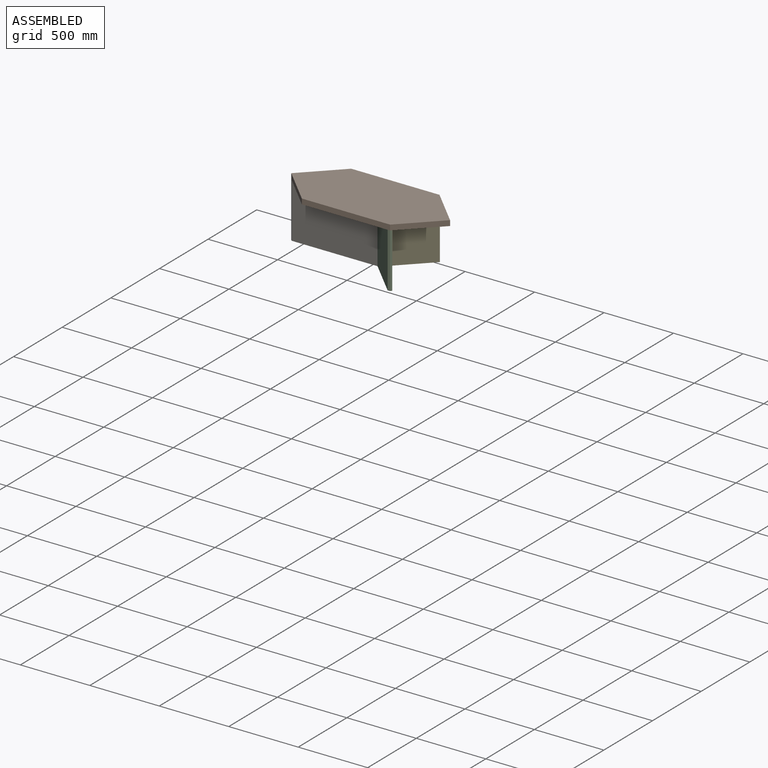
[diagram: assembled view]
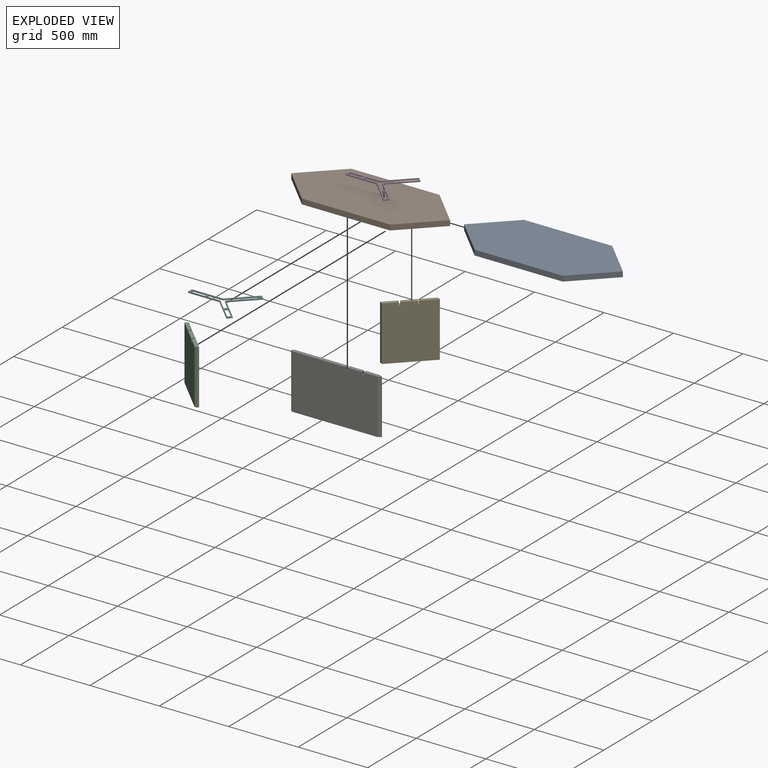
[diagram: exploded view]
GUIDED TOUR — MATED ASSEMBLY (Onshape document 5872a078319eed9a7cf71b3f, AutoMate assembly 5872a078319eed9a7cf71b3f_d46c2067f6a06b2119b77b0b_a4a58686169b9569efb50c80_default)

This assembly has 7 components, labeled P0..P6 below (a component is one placed occurrence of a part; the same part can appear more than once), held together by 5 mates. A mate is a constraint between two components; its type names the relative motion it leaves free:
  FASTENED — locks the two components together rigidly (no relative motion).
Axis/direction vectors are unit vectors and 'through' points are millimeter coordinates, both in the assembly's world frame.

MATES
  1. FASTENED "Fastened 5": P5 <-> P3, direction (0.000, 1.000, 0.000) through (197.70, 308.87, 87.40) mm
  2. FASTENED "Fastened 2": P2 <-> P1, direction (0.000, -1.000, 0.000) through (685.56, 35.82, 96.92) mm
  3. FASTENED "Fastened 4": P3 <-> P6, direction (1.000, 0.000, 0.000) through (210.40, 302.52, 77.87) mm
  4. FASTENED "Fastened 3": P6 <-> P1, direction (-0.707, 0.707, 0.000) through (-203.44, 289.82, 96.92) mm
  5. FASTENED "Fastened 1": P4 <-> P1, direction (0.707, 0.707, 0.000) through (685.56, 543.82, 96.92) mm

ASSEMBLY ORDER
  1. P1 — the base component [order heuristic]
  2. P0 — core [order heuristic]
  3. P6 [order verified]
  4. P4 [order verified]
  5. P3 [order verified]
  6. P5 [order verified]
  7. P2 [order verified]
(P3, P5 verified with a relaxed clearance tolerance: the source model stores slight part interference there.)
Order-tag legend:
  [order verified] — this step's position reverses a verified removal order: the component was checked to insert without passing through the ones already placed.
  [order heuristic] — the first 2 components form the assembly's core: parts whose collision-free extraction could not be verified, listed in mate-graph order.

Of the 7 components, 7 carry the full construction recipe — the FeatureScript program that regenerates the part's solid from scratch; the rest are supplied as boundary geometry only.
Each toured component is shown spotlighted twice — in the assembled view, then in the exploded view, where a leader line traces a displaced component back to its assembled socket (saturated green if recipe-attached, orange if geometry-only; every other component desaturated gray) — followed by its recipe or geometry summary and the mates that hold it.
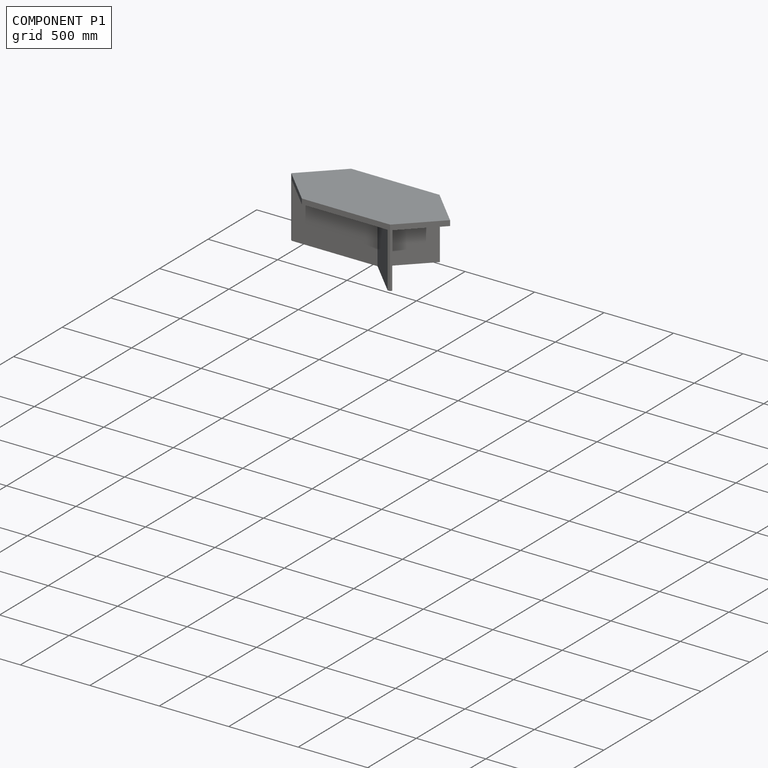
[diagram: component P1 — assembled]
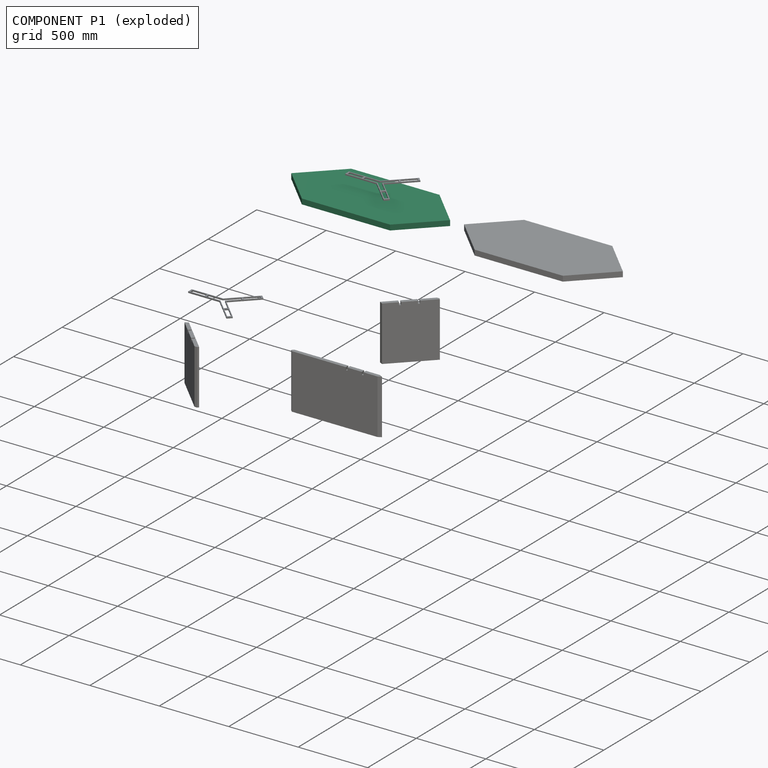
[diagram: component P1 — exploded]
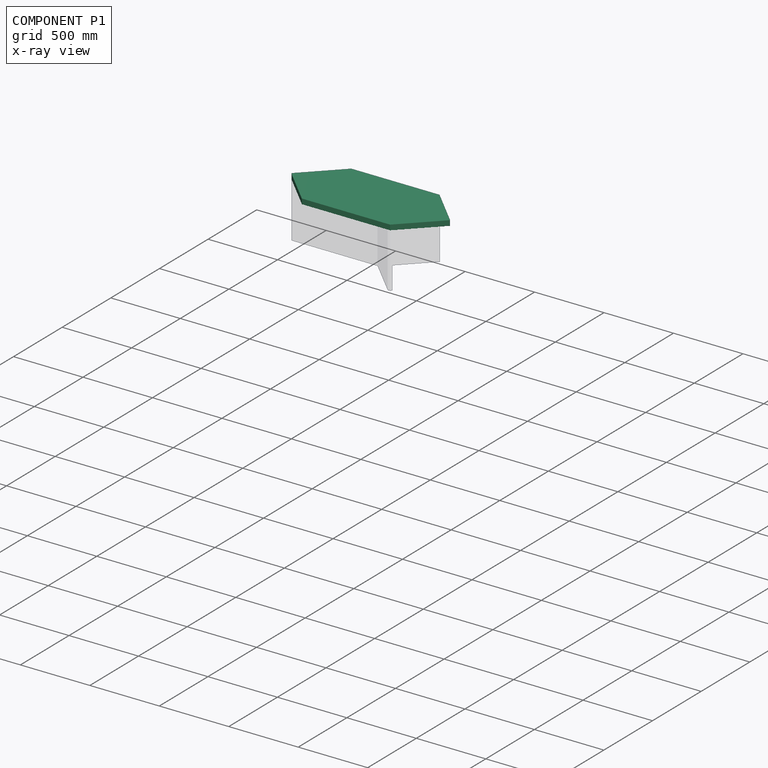
[diagram: component P1 — x-ray view]
COMPONENT P1 — same part as P0 (CADFS 00780366); its construction recipe is shown at P0.
Held by: FASTENED mate "Fastened 2" to P2; FASTENED mate "Fastened 3" to P6; FASTENED mate "Fastened 1" to P4.
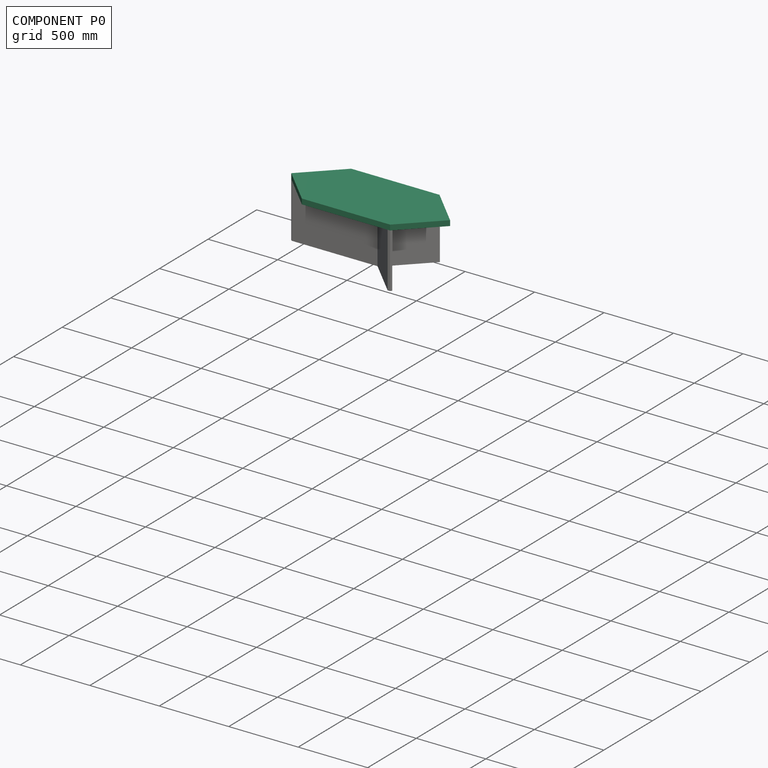
[diagram: component P0 — assembled]
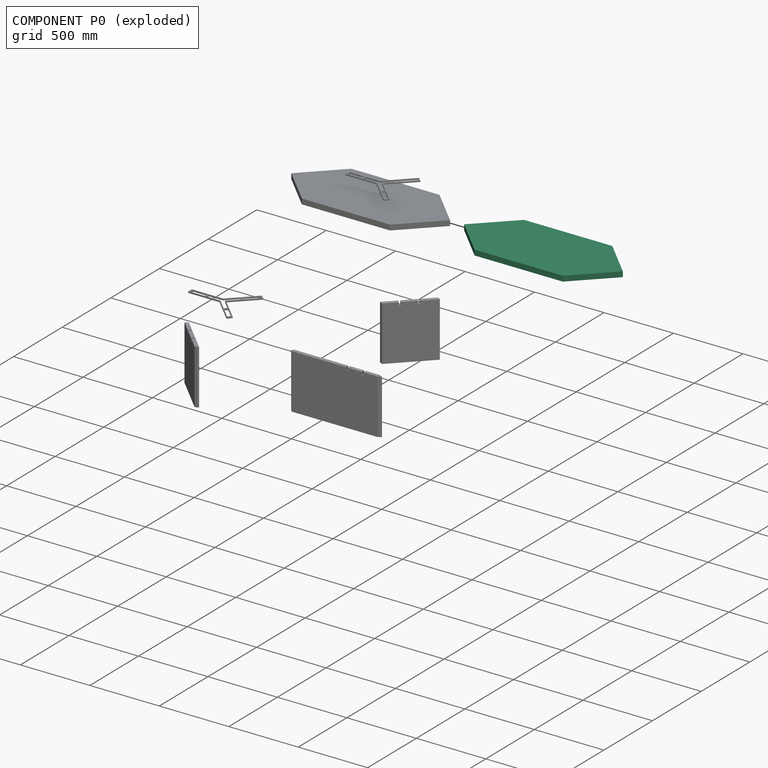
[diagram: component P0 — exploded]
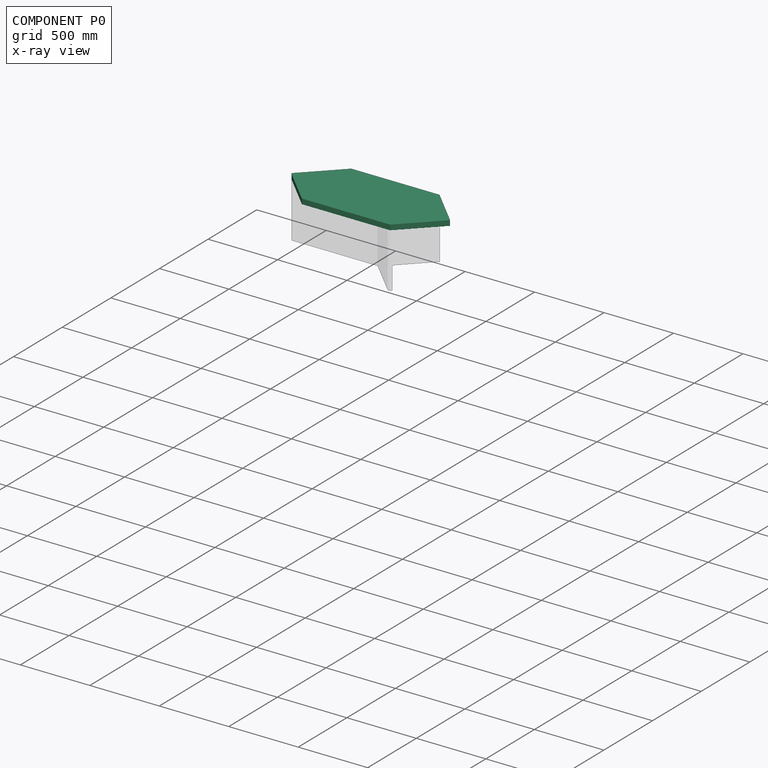
[diagram: component P0 — x-ray view]
COMPONENT P0 — recipe-attached (CADFS 00780366, mesh-verified: the recipe's output STEP matches this component's geometry to below the mesh-comparison resolution (tessellation chordal tolerance ~1.88 mm)).
Held by: no mates (free).
Construction recipe (FeatureScript — the CAD program that rebuilds this solid; sketch coordinates are in the units given by the * unit suffixes, e.g. mm):

FeatureScript 1511;
import(path : "onshape/std/geometry.fs", version : "1511.0");
import(path : "onshape/std/common.fs", version : "1511.0");
const mm = millimeter;
const VERTEX = EntityType.VERTEX;
const EDGE = EntityType.EDGE;
const FACE = EntityType.FACE;
const BODY = EntityType.BODY;
function v(x, y){return vector(x, y);}
function OD(order){return orderDisambiguation(order);}
function OSD(set){return originalSetDisambiguation(set);}
function TD(topology){return topologyDisambiguation(topology);}
function TDD(query){return trueDependencyDisambiguation(query);}
function sQuery(a, b, c) {return sketchEntityQuery(a, b, c);}

annotation { "Feature Type Name" : "Feature", "Feature Type Description" : "" }
export const myFeature = defineFeature(function(context is Context, id is Id, definition is map)
    precondition{}
    {
        {
            var Q0;
            Q0=qCreatedBy(makeId("Top.planeOp"),FACE);
            var sketch = newSketch(context, id + "F0", { "sketchPlane" : qUnion([Q0])});
            skLineSegment(sketch, "E0", {"start": v(0, 0) * mm, "end": v(254, 254) * mm});
            skLineSegment(sketch, "E1", {"start": v(254, 254) * mm, "end": v(889, 254) * mm});
            skLineSegment(sketch, "E2", {"start": v(889, 254) * mm, "end": v(1143, 0) * mm});
            skLineSegment(sketch, "E3", {"start": v(0, 0) * mm, "end": v(1143, 0) * mm, "construction": true});
            skLineSegment(sketch, "E4.MirrorCS", {"start": v(0, 0) * mm, "end": v(254, -254) * mm});
            skLineSegment(sketch, "E5.MirrorCS", {"start": v(254, -254) * mm, "end": v(889, -254) * mm});
            skLineSegment(sketch, "E6.MirrorCS", {"start": v(889, -254) * mm, "end": v(1143, 0) * mm});
            skSolve(sketch);
        }
        {
            var Q0;
            Q0=makeQuery(id+"F0.imprint","IMPRINT",FACE,{"disambiguationData":[TD([[makeQuery(id+"F0.imprint","IMPRINT",EDGE,{"derivedFrom":sQuery(id+"F0.wireOp",EDGE,"E0")}),-1.0]])]});
            extrude(context, id + "F1", {"entities" : qUnion([Q0]), "depth" : 38.1 * mm, "offsetDistance" : 25.4 * mm});
        }
    });
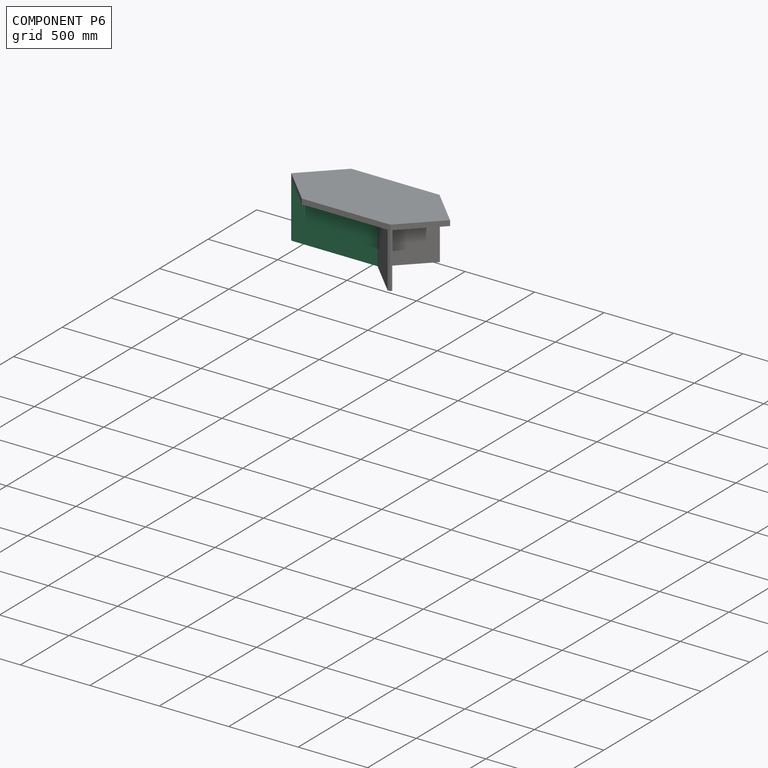
[diagram: component P6 — assembled]
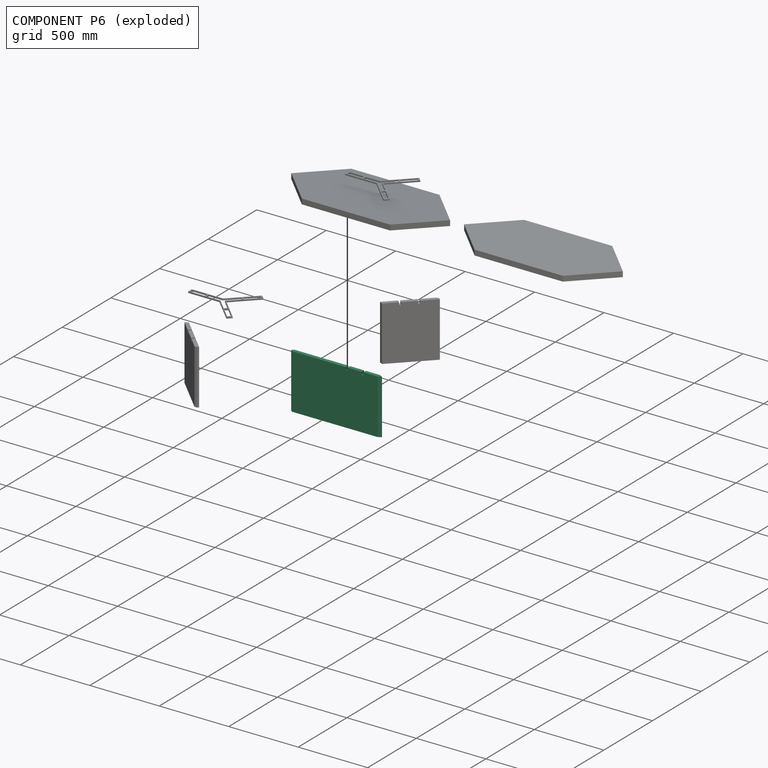
[diagram: component P6 — exploded]
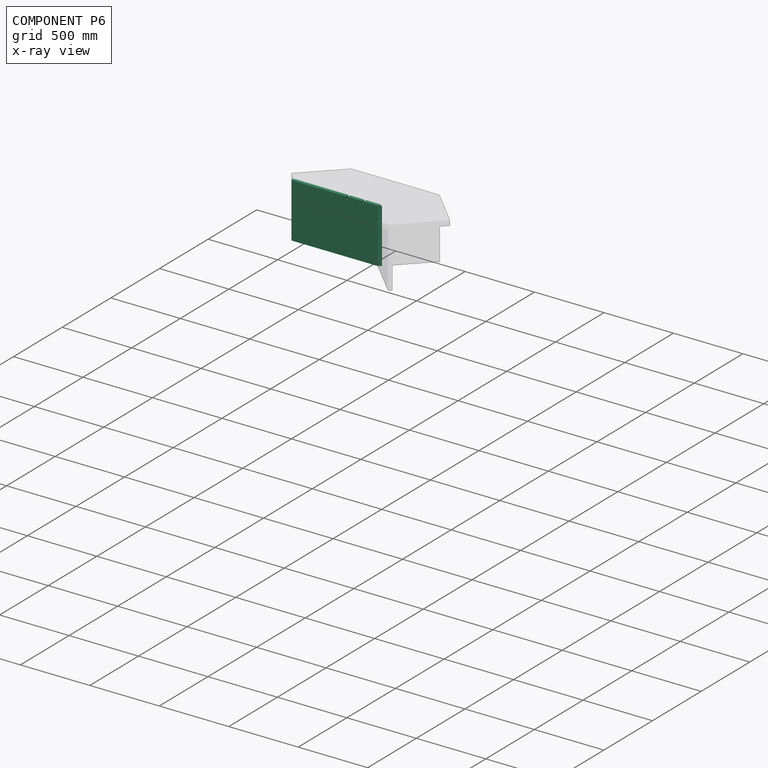
[diagram: component P6 — x-ray view]
COMPONENT P6 — recipe-attached (CADFS 00780370, mesh-verified: the recipe's output STEP matches this component's geometry to below the mesh-comparison resolution (tessellation chordal tolerance ~1.14 mm)).
Held by: FASTENED mate "Fastened 4" to P3; FASTENED mate "Fastened 3" to P1.
Construction recipe (FeatureScript — the CAD program that rebuilds this solid; sketch coordinates are in the units given by the * unit suffixes, e.g. mm):

FeatureScript 1511;
import(path : "onshape/std/geometry.fs", version : "1511.0");
import(path : "onshape/std/common.fs", version : "1511.0");
const mm = millimeter;
const VERTEX = EntityType.VERTEX;
const EDGE = EntityType.EDGE;
const FACE = EntityType.FACE;
const BODY = EntityType.BODY;
function v(x, y){return vector(x, y);}
function OD(order){return orderDisambiguation(order);}
function OSD(set){return originalSetDisambiguation(set);}
function TD(topology){return topologyDisambiguation(topology);}
function TDD(query){return trueDependencyDisambiguation(query);}
function sQuery(a, b, c) {return sketchEntityQuery(a, b, c);}

annotation { "Feature Type Name" : "Feature", "Feature Type Description" : "" }
export const myFeature = defineFeature(function(context is Context, id is Id, definition is map)
    precondition{}
    {
        {
            var Q0;
            Q0=qCreatedBy(makeId("Top.planeOp"),FACE);
            var sketch = newSketch(context, id + "F0", { "sketchPlane" : qUnion([Q0])});
            skLineSegment(sketch, "E0.0", {"start": v(9.7, -12.7) * mm, "end": v(550.53, -12.7) * mm});
            skLineSegment(sketch, "E1.0", {"start": v(9.7, 12.7) * mm, "end": v(550.53, 12.7) * mm});
            skLineSegment(sketch, "E2", {"start": v(-13.53, 0) * mm, "end": v(9.7, 12.7) * mm});
            skLineSegment(sketch, "E3", {"start": v(-13.53, 0) * mm, "end": v(9.7, -12.7) * mm});
            skLineSegment(sketch, "E4", {"start": v(111.3, 12.7) * mm, "end": v(111.3, -12.7) * mm});
            skLineSegment(sketch, "E5.0", {"start": v(124, 12.7) * mm, "end": v(124, -12.7) * mm});
            skLineSegment(sketch, "E6", {"start": v(225.6, 12.7) * mm, "end": v(225.6, -12.7) * mm});
            skLineSegment(sketch, "E7.0", {"start": v(238.3, 12.7) * mm, "end": v(238.3, -12.7) * mm});
            skLineSegment(sketch, "E8", {"start": v(626.73, 12.7) * mm, "end": v(639.43, 0) * mm});
            skLineSegment(sketch, "E9", {"start": v(626.73, -12.7) * mm, "end": v(639.43, 0) * mm});
            skLineSegment(sketch, "E10", {"start": v(550.53, 12.7) * mm, "end": v(626.73, 12.7) * mm});
            skLineSegment(sketch, "E11", {"start": v(550.53, -12.7) * mm, "end": v(626.73, -12.7) * mm});
            skSolve(sketch);
        }
        {
            var Q0;
            {var subQ0=sQuery(id+"F0.wireOp",EDGE,"E7.0");Q0=makeQuery(id+"F0.imprint","IMPRINT",FACE,{"disambiguationData":[TD([[makeQuery(id+"F0.imprint","IMPRINT",EDGE,{"derivedFrom":subQ0}),1.0]])]});}
            var Q1;
            {var subQ0=sQuery(id+"F0.wireOp",EDGE,"E6");Q1=makeQuery(id+"F0.imprint","IMPRINT",FACE,{"disambiguationData":[TD([[makeQuery(id+"F0.imprint","IMPRINT",EDGE,{"derivedFrom":subQ0}),1.0]])]});}
            var Q2;
            {var subQ0=sQuery(id+"F0.wireOp",EDGE,"E5.0");Q2=makeQuery(id+"F0.imprint","IMPRINT",FACE,{"disambiguationData":[TD([[makeQuery(id+"F0.imprint","IMPRINT",EDGE,{"derivedFrom":subQ0}),1.0]])]});}
            var Q3;
            {var subQ0=sQuery(id+"F0.wireOp",EDGE,"E4");Q3=makeQuery(id+"F0.imprint","IMPRINT",FACE,{"disambiguationData":[TD([[makeQuery(id+"F0.imprint","IMPRINT",EDGE,{"derivedFrom":subQ0}),1.0]])]});}
            var Q4;
            {var subQ3=sQuery(id+"F0.wireOp",EDGE,"E2");Q4=makeQuery(id+"F0.imprint","IMPRINT",FACE,{"disambiguationData":[TD([[makeQuery(id+"F0.imprint","IMPRINT",EDGE,{"derivedFrom":subQ3}),-1.0]])]});}
            extrude(context, id + "F1", {"entities" : qUnion([Q0, Q1, Q2, Q3, Q4]), "depth" : 374.65 * mm, "offsetDistance" : 25.4 * mm});
        }
        {
            var Q0;
            {var subQ0=sQuery(id+"F0.wireOp",EDGE,"E7.0");Q0=makeQuery(id+"F0.imprint","IMPRINT",FACE,{"disambiguationData":[TD([[makeQuery(id+"F0.imprint","IMPRINT",EDGE,{"derivedFrom":subQ0}),1.0]])]});}
            var Q1;
            {var subQ0=sQuery(id+"F0.wireOp",EDGE,"E5.0");Q1=makeQuery(id+"F0.imprint","IMPRINT",FACE,{"disambiguationData":[TD([[makeQuery(id+"F0.imprint","IMPRINT",EDGE,{"derivedFrom":subQ0}),1.0]])]});}
            var Q2;
            {var subQ3=sQuery(id+"F0.wireOp",EDGE,"E2");Q2=makeQuery(id+"F0.imprint","IMPRINT",FACE,{"disambiguationData":[TD([[makeQuery(id+"F0.imprint","IMPRINT",EDGE,{"derivedFrom":subQ3}),-1.0]])]});}
            extrude(context, id + "F2", {"entities" : qUnion([Q0, Q1, Q2]), "operationType" : NewBodyOperationType.ADD, "oppositeDirection" : true, "depth" : 19.05 * mm, "offsetDistance" : 25.4 * mm});
        }
    });
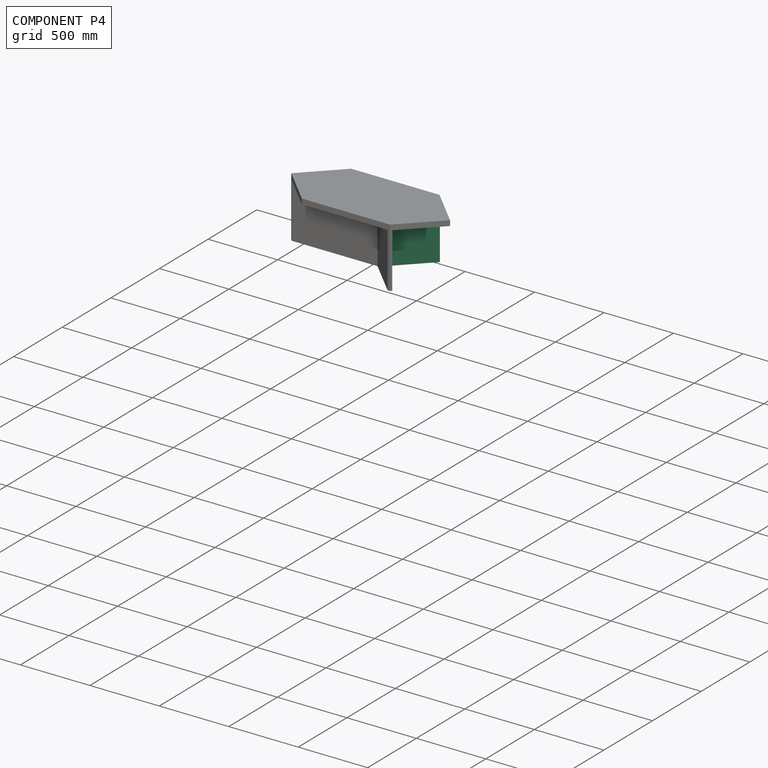
[diagram: component P4 — assembled]
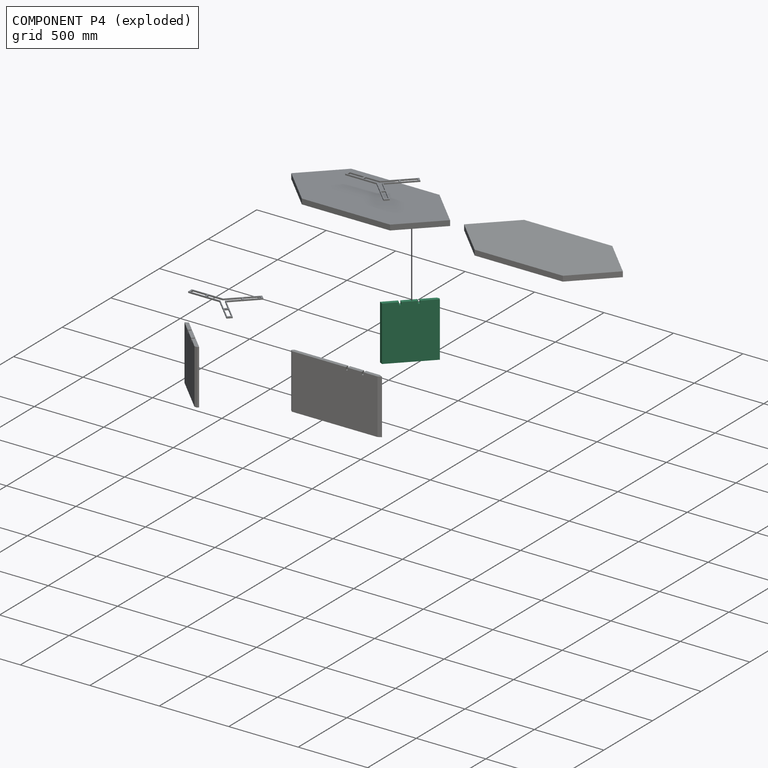
[diagram: component P4 — exploded]
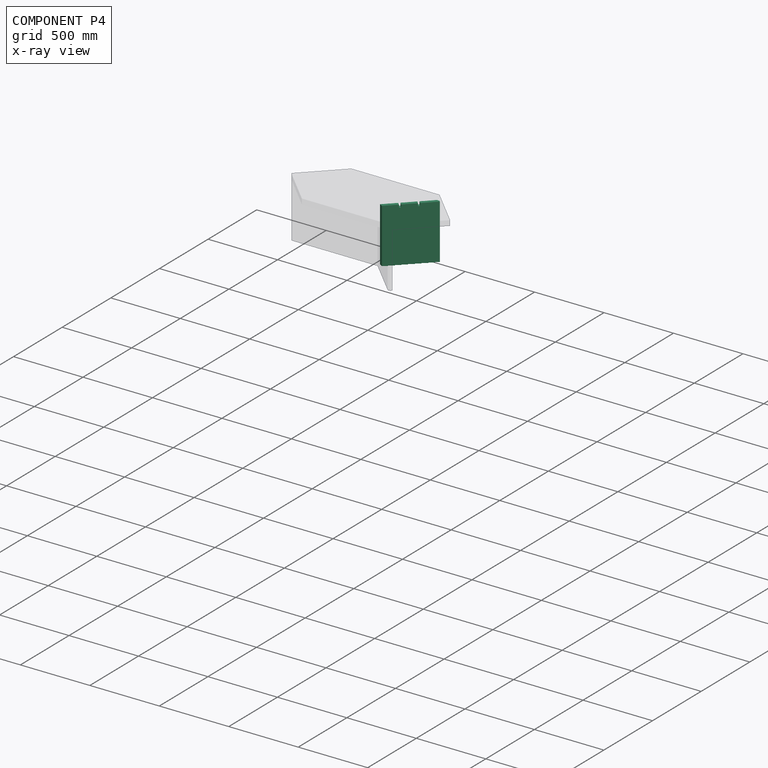
[diagram: component P4 — x-ray view]
COMPONENT P4 — recipe-attached (CADFS 00780367, mesh-verified: the recipe's output STEP matches this component's geometry to below the mesh-comparison resolution (tessellation chordal tolerance ~0.81 mm)).
Held by: FASTENED mate "Fastened 1" to P1.
Construction recipe (FeatureScript — the CAD program that rebuilds this solid; sketch coordinates are in the units given by the * unit suffixes, e.g. mm):

FeatureScript 1511;
import(path : "onshape/std/geometry.fs", version : "1511.0");
import(path : "onshape/std/common.fs", version : "1511.0");
const mm = millimeter;
const VERTEX = EntityType.VERTEX;
const EDGE = EntityType.EDGE;
const FACE = EntityType.FACE;
const BODY = EntityType.BODY;
function v(x, y){return vector(x, y);}
function OD(order){return orderDisambiguation(order);}
function OSD(set){return originalSetDisambiguation(set);}
function TD(topology){return topologyDisambiguation(topology);}
function TDD(query){return trueDependencyDisambiguation(query);}
function sQuery(a, b, c) {return sketchEntityQuery(a, b, c);}

annotation { "Feature Type Name" : "Feature", "Feature Type Description" : "" }
export const myFeature = defineFeature(function(context is Context, id is Id, definition is map)
    precondition{}
    {
        {
            var Q0;
            Q0=qCreatedBy(makeId("Top.planeOp"),FACE);
            var sketch = newSketch(context, id + "F0", { "sketchPlane" : qUnion([Q0])});
            skLineSegment(sketch, "E0", {"start": v(-279.89, 254) * mm, "end": v(278.91, 254) * mm});
            skLineSegment(sketch, "E1", {"start": v(278.91, 254) * mm, "end": v(532.91, 0) * mm});
            skLineSegment(sketch, "E2.MirrorCS", {"start": v(-279.89, -254) * mm, "end": v(278.91, -254) * mm});
            skLineSegment(sketch, "E3.MirrorCS", {"start": v(278.91, -254) * mm, "end": v(532.91, 0) * mm});
            skLineSegment(sketch, "E4.0", {"start": v(-288.87, 245.02) * mm, "end": v(-43.85, 0) * mm});
            skLineSegment(sketch, "E5.0", {"start": v(-261.93, 254) * mm, "end": v(-20.63, 12.7) * mm});
            skLineSegment(sketch, "E6.MirrorCS", {"start": v(-261.93, -254) * mm, "end": v(-20.63, -12.7) * mm});
            skLineSegment(sketch, "E7.MirrorCS", {"start": v(-288.87, -245.02) * mm, "end": v(-43.85, 0) * mm});
            skLineSegment(sketch, "E8.0", {"start": v(-20.63, -12.7) * mm, "end": v(520.21, -12.7) * mm});
            skLineSegment(sketch, "E9.0", {"start": v(-20.63, 12.7) * mm, "end": v(520.21, 12.7) * mm});
            skLineSegment(sketch, "E10", {"start": v(-43.85, 0) * mm, "end": v(-20.63, 12.7) * mm});
            skLineSegment(sketch, "E11", {"start": v(-43.85, 0) * mm, "end": v(-20.63, -12.7) * mm});
            skLineSegment(sketch, "E12", {"start": v(-115.7, -71.84) * mm, "end": v(-97.73, -89.8) * mm});
            skLineSegment(sketch, "E13.0", {"start": v(-124.67, -80.82) * mm, "end": v(-106.71, -98.78) * mm});
            skLineSegment(sketch, "E14", {"start": v(-279.89, 254) * mm, "end": v(-533.89, 0) * mm});
            skLineSegment(sketch, "E15", {"start": v(-533.89, 0) * mm, "end": v(-279.89, -254) * mm});
            skLineSegment(sketch, "E16", {"start": v(-533.89, 0) * mm, "end": v(532.91, 0) * mm, "construction": true});
            skLineSegment(sketch, "E17.MirrorCS", {"start": v(-124.67, 80.82) * mm, "end": v(-106.71, 98.78) * mm});
            skLineSegment(sketch, "E18.MirrorCS", {"start": v(-115.7, 71.84) * mm, "end": v(-97.73, 89.8) * mm});
            skLineSegment(sketch, "E19", {"start": v(80.97, 12.7) * mm, "end": v(80.97, -12.7) * mm});
            skLineSegment(sketch, "E20.0", {"start": v(93.67, 12.7) * mm, "end": v(93.67, -12.7) * mm});
            skLineSegment(sketch, "E21", {"start": v(-196.51, 152.66) * mm, "end": v(-178.55, 170.62) * mm});
            skLineSegment(sketch, "E22.0", {"start": v(-205.5, 161.64) * mm, "end": v(-187.53, 179.6) * mm});
            skLineSegment(sketch, "E23.MirrorCS", {"start": v(-196.51, -152.66) * mm, "end": v(-178.55, -170.62) * mm});
            skLineSegment(sketch, "E24.MirrorCS", {"start": v(-205.5, -161.64) * mm, "end": v(-187.53, -179.6) * mm});
            skSolve(sketch);
        }
        {
            var Q0;
            {var subQ0=sQuery(id+"F0.wireOp",EDGE,"E13.0");Q0=makeQuery(id+"F0.imprint","IMPRINT",FACE,{"disambiguationData":[TD([[makeQuery(id+"F0.imprint","IMPRINT",EDGE,{"derivedFrom":subQ0}),-1.0]])]});}
            var Q1;
            {var subQ0=sQuery(id+"F0.wireOp",EDGE,"E11");Q1=makeQuery(id+"F0.imprint","IMPRINT",FACE,{"disambiguationData":[TD([[makeQuery(id+"F0.imprint","IMPRINT",EDGE,{"derivedFrom":subQ0}),-1.0]])]});}
            var Q2;
            {var subQ0=sQuery(id+"F0.wireOp",EDGE,"E12");Q2=makeQuery(id+"F0.imprint","IMPRINT",FACE,{"disambiguationData":[TD([[makeQuery(id+"F0.imprint","IMPRINT",EDGE,{"derivedFrom":subQ0}),-1.0]])]});}
            var Q3;
            {var subQ5=sQuery(id+"F0.wireOp",EDGE,"E24.MirrorCS");Q3=makeQuery(id+"F0.imprint","IMPRINT",FACE,{"disambiguationData":[TD([[makeQuery(id+"F0.imprint","IMPRINT",EDGE,{"derivedFrom":subQ5}),-1.0]])]});}
            var Q4;
            {var subQ0=sQuery(id+"F0.wireOp",EDGE,"E23.MirrorCS");Q4=makeQuery(id+"F0.imprint","IMPRINT",FACE,{"disambiguationData":[TD([[makeQuery(id+"F0.imprint","IMPRINT",EDGE,{"derivedFrom":subQ0}),-1.0]])]});}
            var Q5;
            Q5=sQuery(id+"F0.wireOp",EDGE,"E7.MirrorCS");
            var Q6;
            Q6=sQuery(id+"F0.wireOp",EDGE,"E6.MirrorCS");
            extrude(context, id + "F1", {"entities" : qUnion([Q0, Q1, Q2, Q3, Q4]), "surfaceEntities" : qUnion([Q5, Q6]), "depth" : 374.65 * mm, "offsetDistance" : 25.4 * mm});
        }
        {
            var Q0;
            {var subQ0=sQuery(id+"F0.wireOp",EDGE,"E11");Q0=makeQuery(id+"F0.imprint","IMPRINT",FACE,{"disambiguationData":[TD([[makeQuery(id+"F0.imprint","IMPRINT",EDGE,{"derivedFrom":subQ0}),-1.0]])]});}
            var Q1;
            {var subQ0=sQuery(id+"F0.wireOp",EDGE,"E13.0");Q1=makeQuery(id+"F0.imprint","IMPRINT",FACE,{"disambiguationData":[TD([[makeQuery(id+"F0.imprint","IMPRINT",EDGE,{"derivedFrom":subQ0}),-1.0]])]});}
            var Q2;
            {var subQ5=sQuery(id+"F0.wireOp",EDGE,"E24.MirrorCS");Q2=makeQuery(id+"F0.imprint","IMPRINT",FACE,{"disambiguationData":[TD([[makeQuery(id+"F0.imprint","IMPRINT",EDGE,{"derivedFrom":subQ5}),-1.0]])]});}
            extrude(context, id + "F2", {"entities" : qUnion([Q0, Q1, Q2]), "operationType" : NewBodyOperationType.ADD, "oppositeDirection" : true, "depth" : 19.05 * mm, "offsetDistance" : 25.4 * mm});
        }
    });
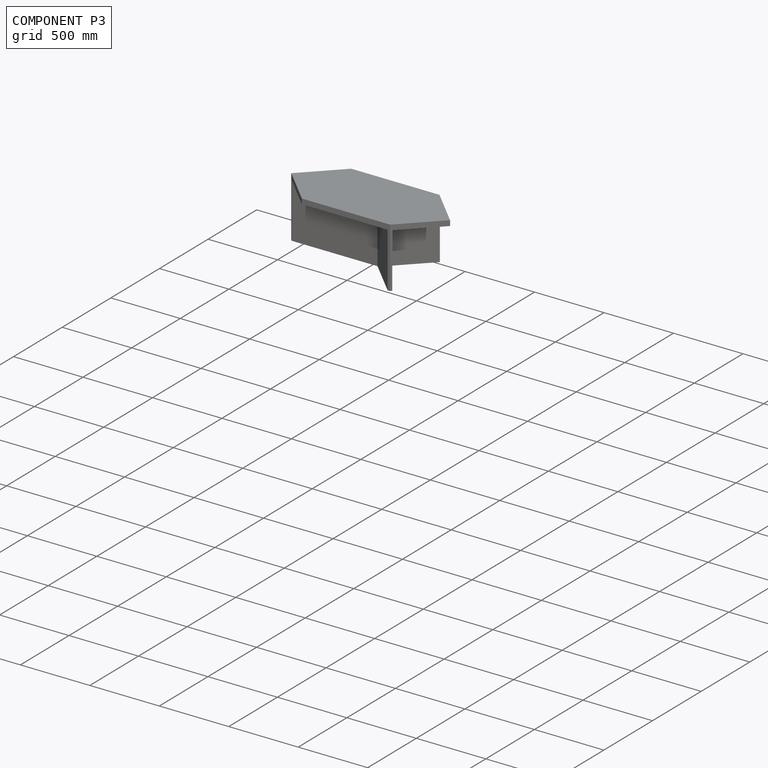
[diagram: component P3 — assembled]
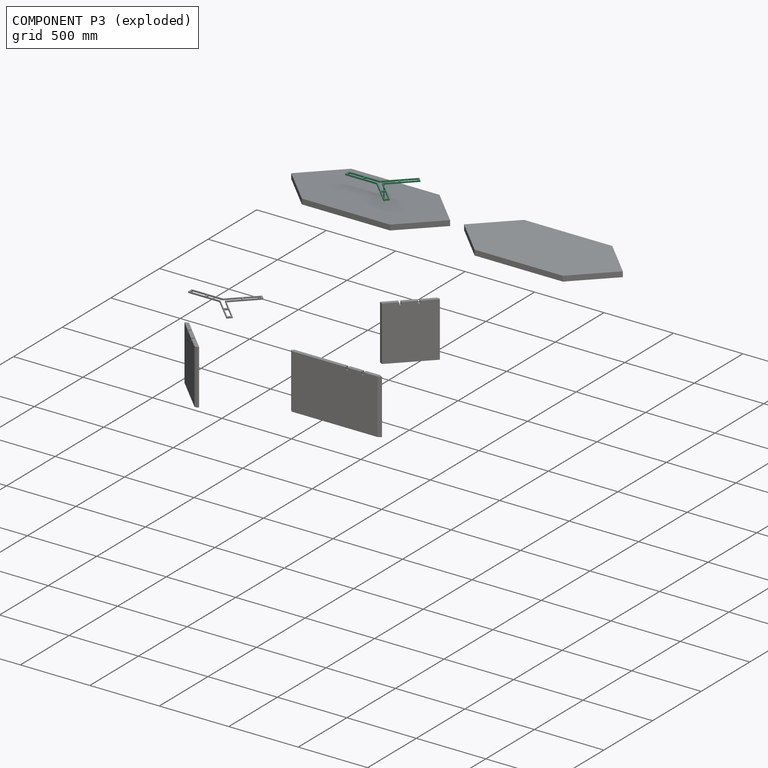
[diagram: component P3 — exploded]
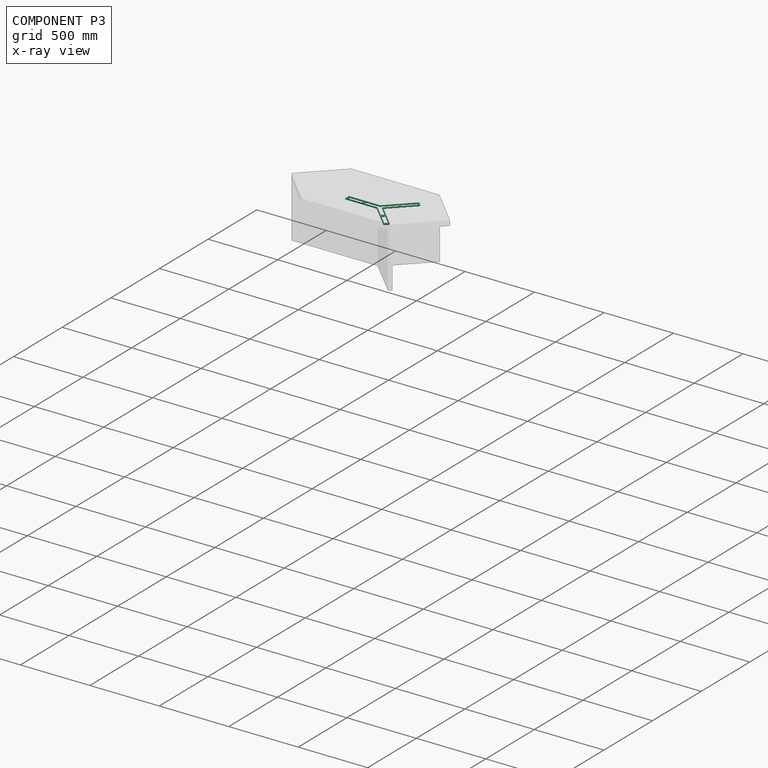
[diagram: component P3 — x-ray view]
COMPONENT P3 — recipe-attached (CADFS 00780371, mesh-verified: the recipe's output STEP matches this component's geometry to below the mesh-comparison resolution (tessellation chordal tolerance ~0.836 mm)).
Held by: FASTENED mate "Fastened 5" to P5; FASTENED mate "Fastened 4" to P6.
Construction recipe (FeatureScript — the CAD program that rebuilds this solid; sketch coordinates are in the units given by the * unit suffixes, e.g. mm):

FeatureScript 1511;
import(path : "onshape/std/geometry.fs", version : "1511.0");
import(path : "onshape/std/common.fs", version : "1511.0");
const mm = millimeter;
const VERTEX = EntityType.VERTEX;
const EDGE = EntityType.EDGE;
const FACE = EntityType.FACE;
const BODY = EntityType.BODY;
function v(x, y){return vector(x, y);}
function OD(order){return orderDisambiguation(order);}
function OSD(set){return originalSetDisambiguation(set);}
function TD(topology){return topologyDisambiguation(topology);}
function TDD(query){return trueDependencyDisambiguation(query);}
function sQuery(a, b, c) {return sketchEntityQuery(a, b, c);}

annotation { "Feature Type Name" : "Feature", "Feature Type Description" : "" }
export const myFeature = defineFeature(function(context is Context, id is Id, definition is map)
    precondition{}
    {
        {
            var Q0;
            Q0=qCreatedBy(makeId("Top.planeOp"),FACE);
            var sketch = newSketch(context, id + "F0", { "sketchPlane" : qUnion([Q0])});
            skLineSegment(sketch, "E0", {"start": v(-85.16, -72.5) * mm, "end": v(-67.18, -90.43) * mm});
            skLineSegment(sketch, "E1.0", {"start": v(-94.34, -81.28) * mm, "end": v(-76.36, -99.21) * mm});
            skLineSegment(sketch, "E2", {"start": v(-503.14, -0.88) * mm, "end": v(563.66, 0.5) * mm, "construction": true});
            skLineSegment(sketch, "E3.MirrorCS", {"start": v(-94.55, 80.58) * mm, "end": v(-76.62, 98.56) * mm});
            skLineSegment(sketch, "E4.MirrorCS", {"start": v(-85.35, 71.82) * mm, "end": v(-67.41, 89.8) * mm});
            skLineSegment(sketch, "E5", {"start": v(111.3, 12.7) * mm, "end": v(111.3, -12.7) * mm});
            skLineSegment(sketch, "E6.0", {"start": v(124, 12.7) * mm, "end": v(124, -12.7) * mm});
            skLineSegment(sketch, "E7", {"start": v(-166.28, 152.54) * mm, "end": v(-148.65, 170.2) * mm});
            skLineSegment(sketch, "E8.0", {"start": v(-175.27, 161.5) * mm, "end": v(-157.65, 179.17) * mm});
            skLineSegment(sketch, "E9.MirrorCS", {"start": v(-165.88, -153.42) * mm, "end": v(-148.21, -171.04) * mm});
            skLineSegment(sketch, "E10.MirrorCS", {"start": v(-174.85, -162.41) * mm, "end": v(-157.18, -180.04) * mm});
            skLineSegment(sketch, "E11", {"start": v(225.6, 12.7) * mm, "end": v(225.6, -12.7) * mm});
            skLineSegment(sketch, "E12", {"start": v(-175.27, 161.5) * mm, "end": v(-179.75, 157.01) * mm});
            skLineSegment(sketch, "E13", {"start": v(-179.75, 157.01) * mm, "end": v(-22.08, -0.26) * mm});
            skLineSegment(sketch, "E14", {"start": v(-174.85, -162.41) * mm, "end": v(-179.35, -157.93) * mm});
            skLineSegment(sketch, "E15", {"start": v(-179.35, -157.93) * mm, "end": v(-22.08, -0.26) * mm});
            skLineSegment(sketch, "E16", {"start": v(-157.65, 179.17) * mm, "end": v(-153.17, 183.68) * mm});
            skLineSegment(sketch, "E17", {"start": v(-153.17, 183.68) * mm, "end": v(12.3, 19.05) * mm});
            skLineSegment(sketch, "E18", {"start": v(-166.28, 152.54) * mm, "end": v(-94.55, 80.58) * mm});
            skLineSegment(sketch, "E19", {"start": v(-85.35, 71.82) * mm, "end": v(-13.1, -0.88) * mm});
            skLineSegment(sketch, "E20", {"start": v(-85.16, -72.5) * mm, "end": v(-13.1, -0.88) * mm});
            skLineSegment(sketch, "E21", {"start": v(-94.34, -81.28) * mm, "end": v(-165.88, -153.42) * mm});
            skLineSegment(sketch, "E22", {"start": v(-67.41, 89.8) * mm, "end": v(9.7, 12.7) * mm});
            skLineSegment(sketch, "E23", {"start": v(-148.65, 170.2) * mm, "end": v(-76.62, 98.56) * mm});
            skLineSegment(sketch, "E24", {"start": v(9.7, 12.7) * mm, "end": v(111.3, 12.7) * mm});
            skLineSegment(sketch, "E25", {"start": v(124, 12.7) * mm, "end": v(225.6, 12.7) * mm});
            skLineSegment(sketch, "E26", {"start": v(225.6, -12.7) * mm, "end": v(124, -12.7) * mm});
            skLineSegment(sketch, "E27", {"start": v(111.3, -12.7) * mm, "end": v(10.55, -12.7) * mm});
            skLineSegment(sketch, "E28", {"start": v(-67.18, -90.43) * mm, "end": v(10.55, -12.7) * mm});
            skLineSegment(sketch, "E29", {"start": v(-76.36, -99.21) * mm, "end": v(-148.21, -171.04) * mm});
            skLineSegment(sketch, "E30", {"start": v(-174.85, -162.41) * mm, "end": v(-165.88, -153.42) * mm, "construction": true});
            skLineSegment(sketch, "E31", {"start": v(238.3, 12.7) * mm, "end": v(238.3, 19.05) * mm});
            skLineSegment(sketch, "E32", {"start": v(238.3, -12.7) * mm, "end": v(238.3, -19.05) * mm});
            skLineSegment(sketch, "E33.MirrorCS", {"start": v(-152.7, -184.53) * mm, "end": v(12.78, -19.05) * mm});
            skLineSegment(sketch, "E34.MirrorCS", {"start": v(-157.18, -180.04) * mm, "end": v(-152.7, -184.53) * mm});
            skPoint(sketch, "E35.trimOffspring.end.orphan", {"position": v(24.01, -7.82) * mm});
            skPoint(sketch, "E36.orphan", {"position": v(24, 7.43) * mm});
            skLineSegment(sketch, "E37", {"start": v(225.6, -12.7) * mm, "end": v(238.3, -12.7) * mm, "construction": true});
            skLineSegment(sketch, "E38", {"start": v(238.3, 12.7) * mm, "end": v(225.6, 12.7) * mm, "construction": true});
            skLineSegment(sketch, "E39", {"start": v(238.3, 19.05) * mm, "end": v(12.3, 19.05) * mm});
            skLineSegment(sketch, "E40", {"start": v(238.3, -19.05) * mm, "end": v(12.78, -19.05) * mm});
            skLineSegment(sketch, "E41", {"start": v(238.3, 12.7) * mm, "end": v(238.3, -12.7) * mm});
            skSolve(sketch);
        }
        {
            var Q0;
            Q0=makeQuery(id+"F0.imprint","IMPRINT",FACE,{"disambiguationData":[TD([[makeQuery(id+"F0.imprint","IMPRINT",EDGE,{"derivedFrom":sQuery(id+"F0.wireOp",EDGE,"E0")}),-1.0]])]});
            extrude(context, id + "F1", {"entities" : qUnion([Q0]), "depth" : 9.52 * mm, "offsetDistance" : 25.4 * mm});
        }
    });
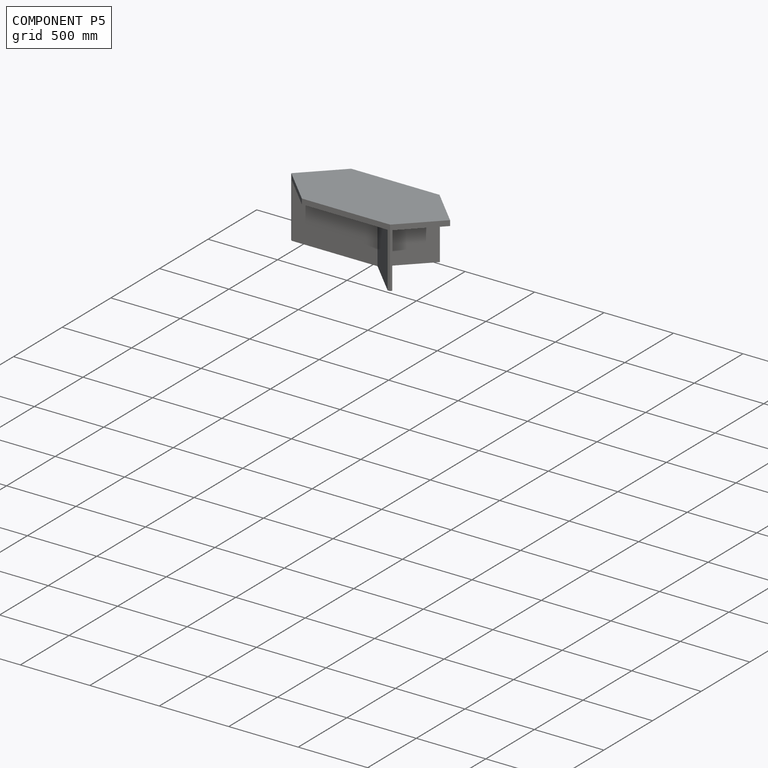
[diagram: component P5 — assembled]
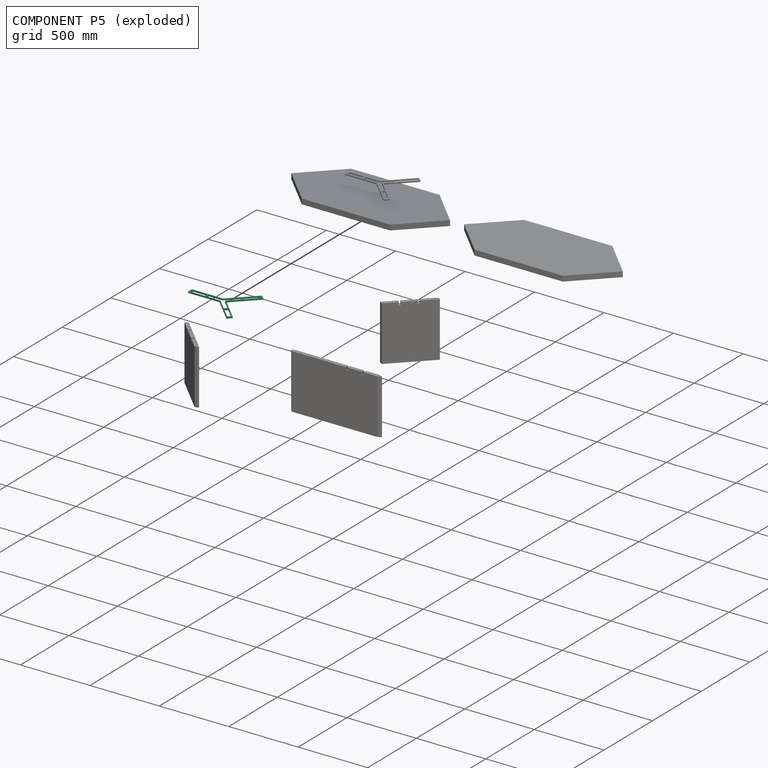
[diagram: component P5 — exploded]
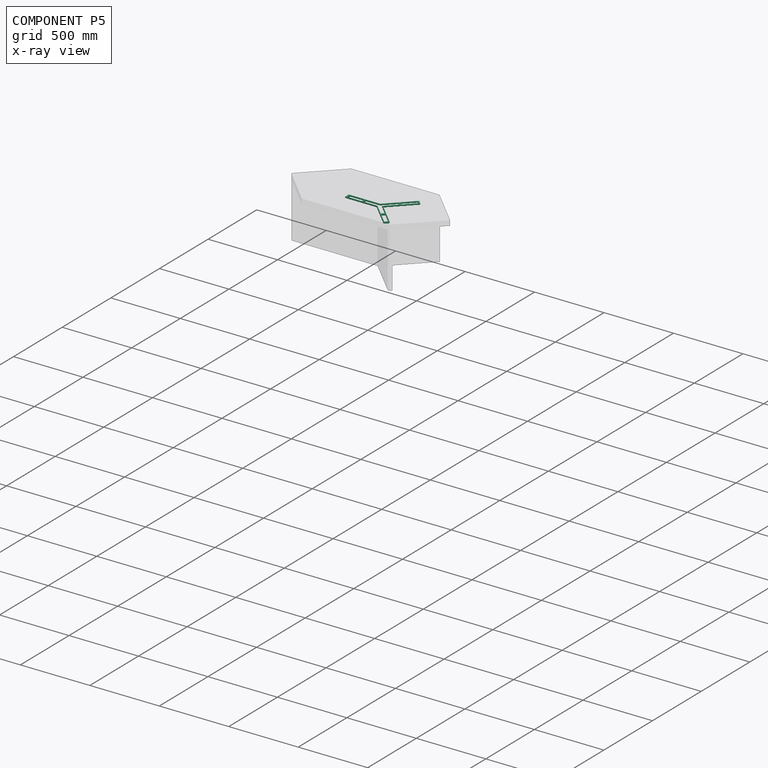
[diagram: component P5 — x-ray view]
COMPONENT P5 — same part as P3 (CADFS 00780371); its construction recipe is shown at P3.
Held by: FASTENED mate "Fastened 5" to P3.
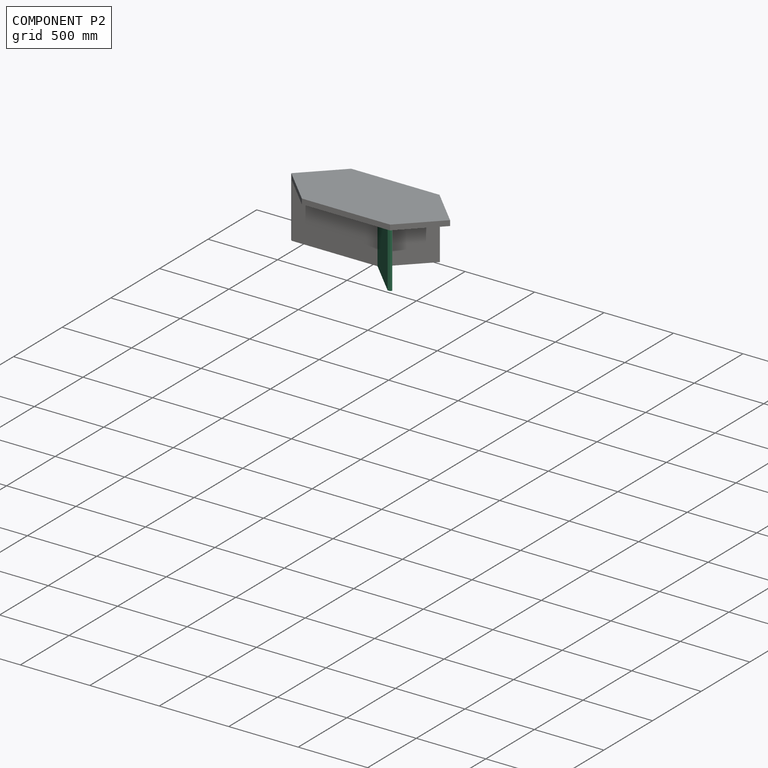
[diagram: component P2 — assembled]
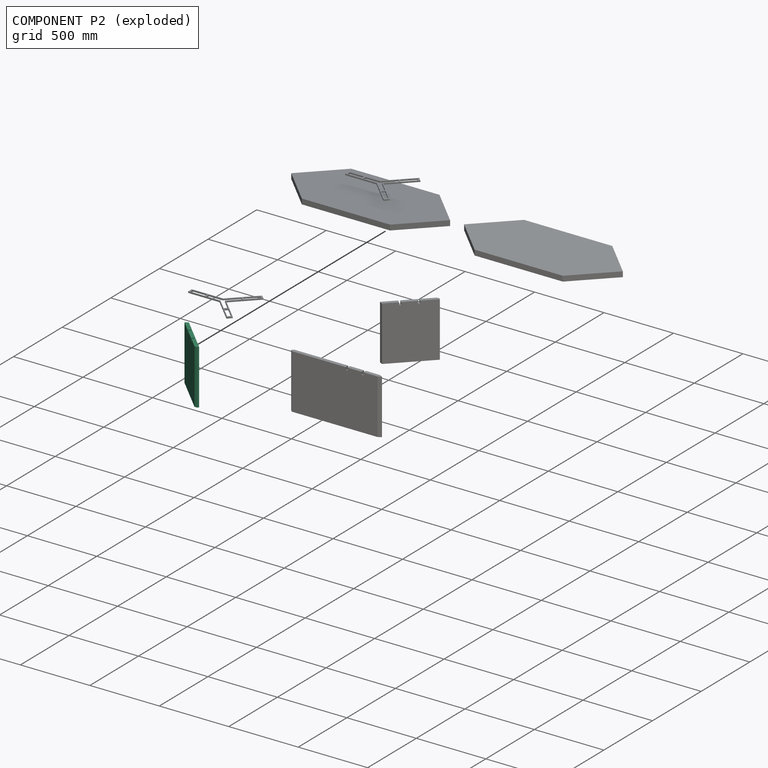
[diagram: component P2 — exploded]
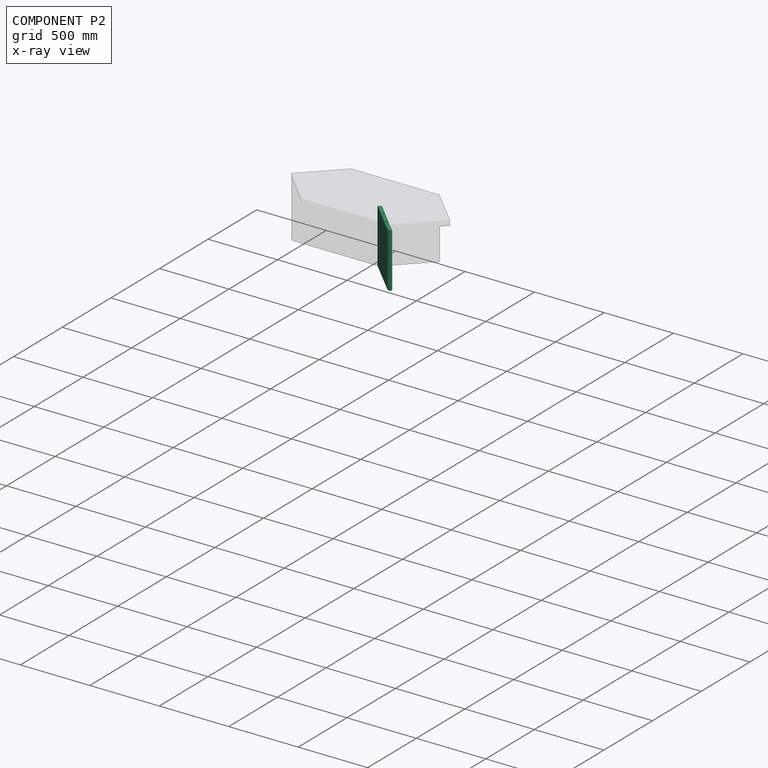
[diagram: component P2 — x-ray view]
COMPONENT P2 — recipe-attached (CADFS 00780367, mesh-verified: the recipe's output STEP matches this component's geometry to below the mesh-comparison resolution (tessellation chordal tolerance ~0.81 mm)).
Held by: FASTENED mate "Fastened 2" to P1.
Construction recipe (FeatureScript — the CAD program that rebuilds this solid; sketch coordinates are in the units given by the * unit suffixes, e.g. mm):

FeatureScript 1511;
import(path : "onshape/std/geometry.fs", version : "1511.0");
import(path : "onshape/std/common.fs", version : "1511.0");
const mm = millimeter;
const VERTEX = EntityType.VERTEX;
const EDGE = EntityType.EDGE;
const FACE = EntityType.FACE;
const BODY = EntityType.BODY;
function v(x, y){return vector(x, y);}
function OD(order){return orderDisambiguation(order);}
function OSD(set){return originalSetDisambiguation(set);}
function TD(topology){return topologyDisambiguation(topology);}
function TDD(query){return trueDependencyDisambiguation(query);}
function sQuery(a, b, c) {return sketchEntityQuery(a, b, c);}

annotation { "Feature Type Name" : "Feature", "Feature Type Description" : "" }
export const myFeature = defineFeature(function(context is Context, id is Id, definition is map)
    precondition{}
    {
        {
            var Q0;
            Q0=qCreatedBy(makeId("Top.planeOp"),FACE);
            var sketch = newSketch(context, id + "F0", { "sketchPlane" : qUnion([Q0])});
            skLineSegment(sketch, "E0", {"start": v(-279.89, 254) * mm, "end": v(278.91, 254) * mm});
            skLineSegment(sketch, "E1", {"start": v(278.91, 254) * mm, "end": v(532.91, 0) * mm});
            skLineSegment(sketch, "E2.MirrorCS", {"start": v(-279.89, -254) * mm, "end": v(278.91, -254) * mm});
            skLineSegment(sketch, "E3.MirrorCS", {"start": v(278.91, -254) * mm, "end": v(532.91, 0) * mm});
            skLineSegment(sketch, "E4.0", {"start": v(-288.87, 245.02) * mm, "end": v(-43.85, 0) * mm});
            skLineSegment(sketch, "E5.0", {"start": v(-261.93, 254) * mm, "end": v(-20.63, 12.7) * mm});
            skLineSegment(sketch, "E6.MirrorCS", {"start": v(-261.93, -254) * mm, "end": v(-20.63, -12.7) * mm});
            skLineSegment(sketch, "E7.MirrorCS", {"start": v(-288.87, -245.02) * mm, "end": v(-43.85, 0) * mm});
            skLineSegment(sketch, "E8.0", {"start": v(-20.63, -12.7) * mm, "end": v(520.21, -12.7) * mm});
            skLineSegment(sketch, "E9.0", {"start": v(-20.63, 12.7) * mm, "end": v(520.21, 12.7) * mm});
            skLineSegment(sketch, "E10", {"start": v(-43.85, 0) * mm, "end": v(-20.63, 12.7) * mm});
            skLineSegment(sketch, "E11", {"start": v(-43.85, 0) * mm, "end": v(-20.63, -12.7) * mm});
            skLineSegment(sketch, "E12", {"start": v(-115.7, -71.84) * mm, "end": v(-97.73, -89.8) * mm});
            skLineSegment(sketch, "E13.0", {"start": v(-124.67, -80.82) * mm, "end": v(-106.71, -98.78) * mm});
            skLineSegment(sketch, "E14", {"start": v(-279.89, 254) * mm, "end": v(-533.89, 0) * mm});
            skLineSegment(sketch, "E15", {"start": v(-533.89, 0) * mm, "end": v(-279.89, -254) * mm});
            skLineSegment(sketch, "E16", {"start": v(-533.89, 0) * mm, "end": v(532.91, 0) * mm, "construction": true});
            skLineSegment(sketch, "E17.MirrorCS", {"start": v(-124.67, 80.82) * mm, "end": v(-106.71, 98.78) * mm});
            skLineSegment(sketch, "E18.MirrorCS", {"start": v(-115.7, 71.84) * mm, "end": v(-97.73, 89.8) * mm});
            skLineSegment(sketch, "E19", {"start": v(80.97, 12.7) * mm, "end": v(80.97, -12.7) * mm});
            skLineSegment(sketch, "E20.0", {"start": v(93.67, 12.7) * mm, "end": v(93.67, -12.7) * mm});
            skLineSegment(sketch, "E21", {"start": v(-196.51, 152.66) * mm, "end": v(-178.55, 170.62) * mm});
            skLineSegment(sketch, "E22.0", {"start": v(-205.5, 161.64) * mm, "end": v(-187.53, 179.6) * mm});
            skLineSegment(sketch, "E23.MirrorCS", {"start": v(-196.51, -152.66) * mm, "end": v(-178.55, -170.62) * mm});
            skLineSegment(sketch, "E24.MirrorCS", {"start": v(-205.5, -161.64) * mm, "end": v(-187.53, -179.6) * mm});
            skSolve(sketch);
        }
        {
            var Q0;
            {var subQ0=sQuery(id+"F0.wireOp",EDGE,"E13.0");Q0=makeQuery(id+"F0.imprint","IMPRINT",FACE,{"disambiguationData":[TD([[makeQuery(id+"F0.imprint","IMPRINT",EDGE,{"derivedFrom":subQ0}),-1.0]])]});}
            var Q1;
            {var subQ0=sQuery(id+"F0.wireOp",EDGE,"E11");Q1=makeQuery(id+"F0.imprint","IMPRINT",FACE,{"disambiguationData":[TD([[makeQuery(id+"F0.imprint","IMPRINT",EDGE,{"derivedFrom":subQ0}),-1.0]])]});}
            var Q2;
            {var subQ0=sQuery(id+"F0.wireOp",EDGE,"E12");Q2=makeQuery(id+"F0.imprint","IMPRINT",FACE,{"disambiguationData":[TD([[makeQuery(id+"F0.imprint","IMPRINT",EDGE,{"derivedFrom":subQ0}),-1.0]])]});}
            var Q3;
            {var subQ5=sQuery(id+"F0.wireOp",EDGE,"E24.MirrorCS");Q3=makeQuery(id+"F0.imprint","IMPRINT",FACE,{"disambiguationData":[TD([[makeQuery(id+"F0.imprint","IMPRINT",EDGE,{"derivedFrom":subQ5}),-1.0]])]});}
            var Q4;
            {var subQ0=sQuery(id+"F0.wireOp",EDGE,"E23.MirrorCS");Q4=makeQuery(id+"F0.imprint","IMPRINT",FACE,{"disambiguationData":[TD([[makeQuery(id+"F0.imprint","IMPRINT",EDGE,{"derivedFrom":subQ0}),-1.0]])]});}
            var Q5;
            Q5=sQuery(id+"F0.wireOp",EDGE,"E7.MirrorCS");
            var Q6;
            Q6=sQuery(id+"F0.wireOp",EDGE,"E6.MirrorCS");
            extrude(context, id + "F1", {"entities" : qUnion([Q0, Q1, Q2, Q3, Q4]), "surfaceEntities" : qUnion([Q5, Q6]), "depth" : 374.65 * mm, "offsetDistance" : 25.4 * mm});
        }
        {
            var Q0;
            {var subQ0=sQuery(id+"F0.wireOp",EDGE,"E11");Q0=makeQuery(id+"F0.imprint","IMPRINT",FACE,{"disambiguationData":[TD([[makeQuery(id+"F0.imprint","IMPRINT",EDGE,{"derivedFrom":subQ0}),-1.0]])]});}
            var Q1;
            {var subQ0=sQuery(id+"F0.wireOp",EDGE,"E13.0");Q1=makeQuery(id+"F0.imprint","IMPRINT",FACE,{"disambiguationData":[TD([[makeQuery(id+"F0.imprint","IMPRINT",EDGE,{"derivedFrom":subQ0}),-1.0]])]});}
            var Q2;
            {var subQ5=sQuery(id+"F0.wireOp",EDGE,"E24.MirrorCS");Q2=makeQuery(id+"F0.imprint","IMPRINT",FACE,{"disambiguationData":[TD([[makeQuery(id+"F0.imprint","IMPRINT",EDGE,{"derivedFrom":subQ5}),-1.0]])]});}
            extrude(context, id + "F2", {"entities" : qUnion([Q0, Q1, Q2]), "operationType" : NewBodyOperationType.ADD, "oppositeDirection" : true, "depth" : 19.05 * mm, "offsetDistance" : 25.4 * mm});
        }
    });
PROVENANCE & LICENSES
Assembly (occurrences, transforms, mates, per-part STEP geometry): AutoMate dataset, Zenodo record 7776208, CC0.
Construction recipes: CADFS (HuggingFace VladPyatov/CADFS, CC-BY-4.0, layered over the ABC dataset), FeatureScript reconstruction programs keyed by ABC model id.
Join: ABC meta listings map ABC model id -> Onshape documentId; within a shared document, parts are matched by geometric signature (bounding-box dims + volume at 0.1% relative tolerance, exact B-rep face/solid counts).
Verification: 7 of this assembly's 7 components carry a recipe attachment, and every attachment is mesh-verified: the CADFS STEP and the AutoMate member STEP were compared as meshes in their shared local frame (symmetric sampled-point-to-mesh distance); worst across the 7 attachments: below the mesh-comparison resolution (tessellation chordal tolerance ~1.88 mm) on a 1251 mm part.
Renders: orthographic iso camera (az 35 / el 25); the floor grid conveys scale (grid pitch printed in each image; no ruler). In the exploded view each component is displaced by its stored offset vector: the offsets alone carry the explosion direction (mate normal/axis signs are not orientation cues and do not encode it), and separation distances are assigned per mate-chain, not proportionally to assembly-order depth.
